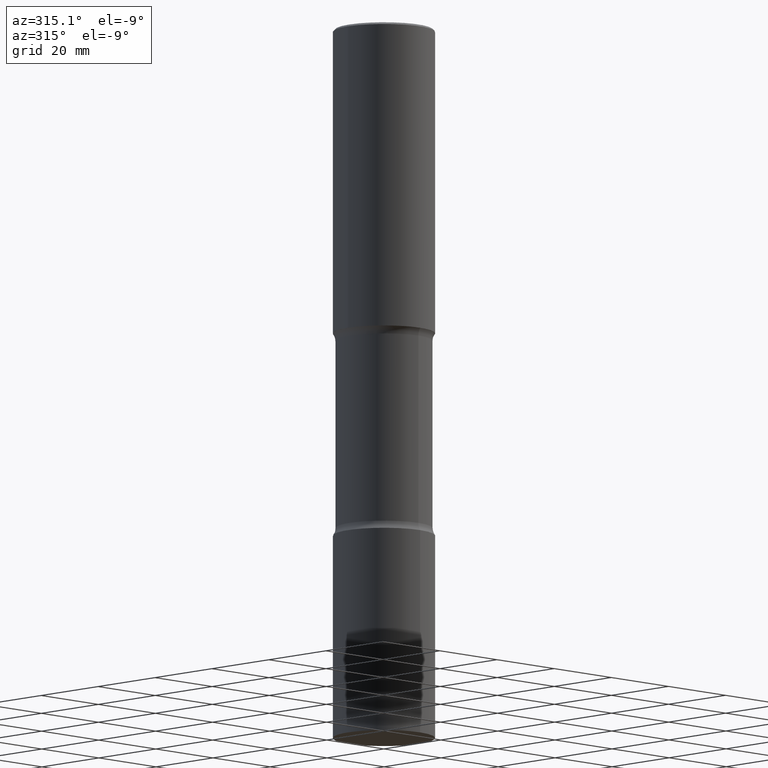
[diagram: clean part render]
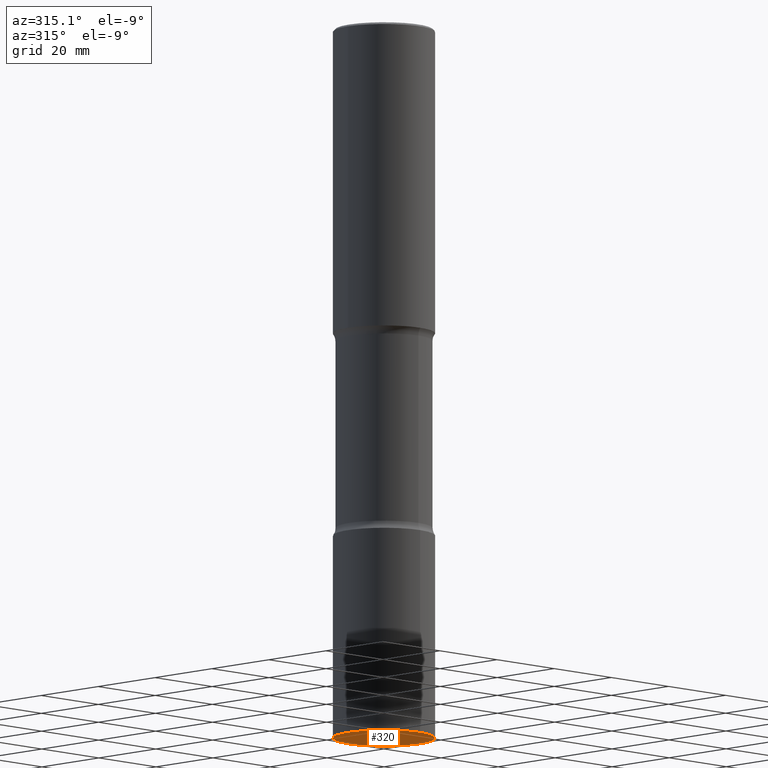
[diagram: same view with one face highlighted and labeled with its STEP entity id]
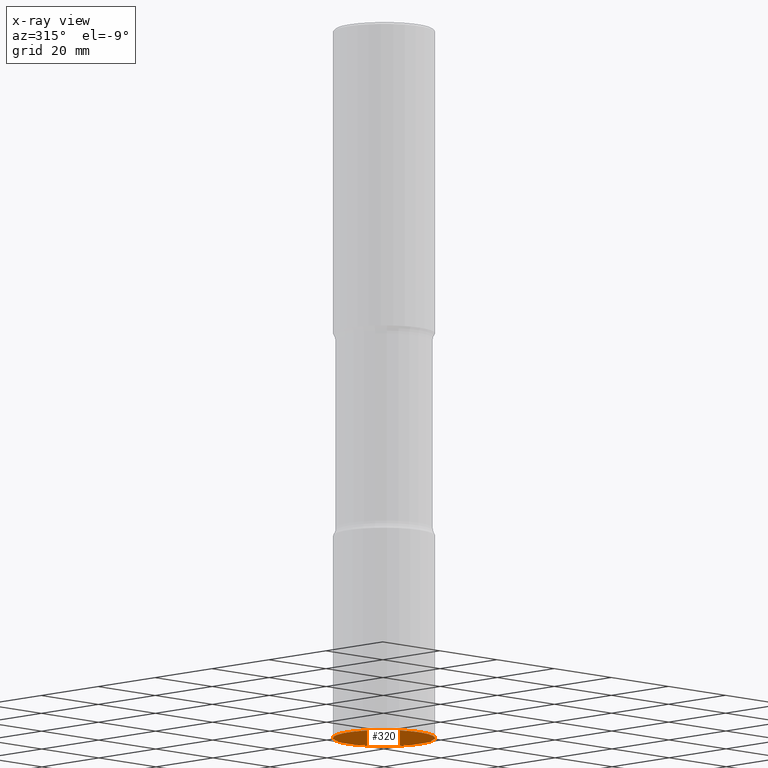
[diagram: x-ray of the same camera — body ghosted, the highlighted face saturated]
A machine part, auxiliary view. The second image highlights one B-rep face of the part: STEP entity #320.
The next image is the same camera in x-ray: the body ghosted, the highlighted face saturated — about 0% of this face is hidden behind the body in this view.
In plain terms, the highlighted planar face has unit normal (0, -0, -1).
Its self-contained STEP definition (entity closure, byte-faithful):
#25 = PLANE ( 'NONE',  #489 ) ;
#58 = CARTESIAN_POINT ( 'NONE',  ( 6.435501798008941756E-29, -3.973871813642189428E-14, -6.999999999999998224 ) ) ;
#67 = CARTESIAN_POINT ( 'NONE',  ( 3.552713678800646080E-15, 0.4999999999999754086, -7.000000000000001776 ) ) ;
#114 = AXIS2_PLACEMENT_3D ( 'NONE', #205, #480, #213 ) ;
#136 = EDGE_CURVE ( 'NONE', #356, #186, #220, .T. ) ;
#186 = VERTEX_POINT ( 'NONE', #478 ) ;
#200 = EDGE_CURVE ( 'NONE', #186, #356, #258, .T. ) ;
#205 = CARTESIAN_POINT ( 'NONE',  ( 1.711472720589620405E-28, -2.444545952856446990E-14, -7.000000000000000000 ) ) ;
#213 = DIRECTION ( 'NONE',  ( -6.982962677686265922E-15, -1.000000000000000000, 4.370956789862822727E-15 ) ) ;
#220 = CIRCLE ( 'NONE', #114, 0.4999999999999998335 ) ;
#239 = AXIS2_PLACEMENT_3D ( 'NONE', #294, #447, #328 ) ;
#258 = CIRCLE ( 'NONE', #239, 0.4999999999999998335 ) ;
#275 = DIRECTION ( 'NONE',  ( 6.982962677686265922E-15, 1.000000000000000000, -3.492208504080639289E-15 ) ) ;
#294 = CARTESIAN_POINT ( 'NONE',  ( 1.711472720589620405E-28, -2.444545952856446990E-14, -7.000000000000000000 ) ) ;
#320 = ADVANCED_FACE ( 'NONE', ( #465 ), #25, .T. ) ;
#328 = DIRECTION ( 'NONE',  ( -6.982962677686265922E-15, -1.000000000000000000, 4.370956789862822727E-15 ) ) ;
#339 = ORIENTED_EDGE ( 'NONE', *, *, #136, .F. ) ;
#342 = DIRECTION ( 'NONE',  ( 2.444961029413743275E-29, -3.492208504080639289E-15, -1.000000000000000000 ) ) ;
#356 = VERTEX_POINT ( 'NONE', #67 ) ;
#418 = ORIENTED_EDGE ( 'NONE', *, *, #200, .F. ) ;
#427 = EDGE_LOOP ( 'NONE', ( #418, #339 ) ) ;
#447 = DIRECTION ( 'NONE',  ( -2.444961029413743836E-29, 3.492208504080639289E-15, 1.000000000000000000 ) ) ;
#465 = FACE_OUTER_BOUND ( 'NONE', #427, .T. ) ;
#478 = CARTESIAN_POINT ( 'NONE',  ( -3.491481338842960595E-15, -0.5000000000000243139, -6.999999999999997335 ) ) ;
#480 = DIRECTION ( 'NONE',  ( -2.444961029413743836E-29, 3.492208504080639289E-15, 1.000000000000000000 ) ) ;
#489 = AXIS2_PLACEMENT_3D ( 'NONE', #58, #342, #275 ) ;